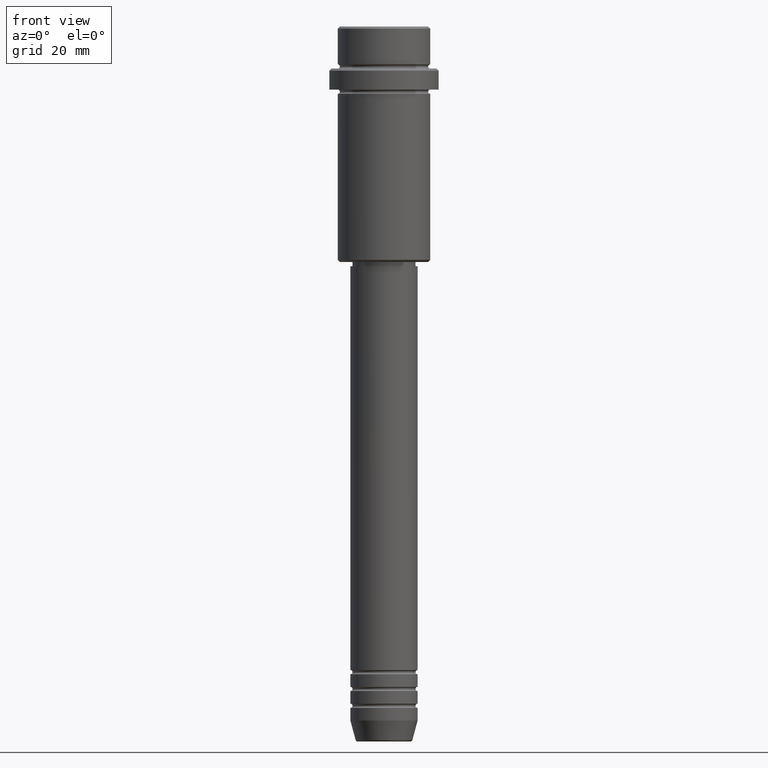
[diagram: clean part render]
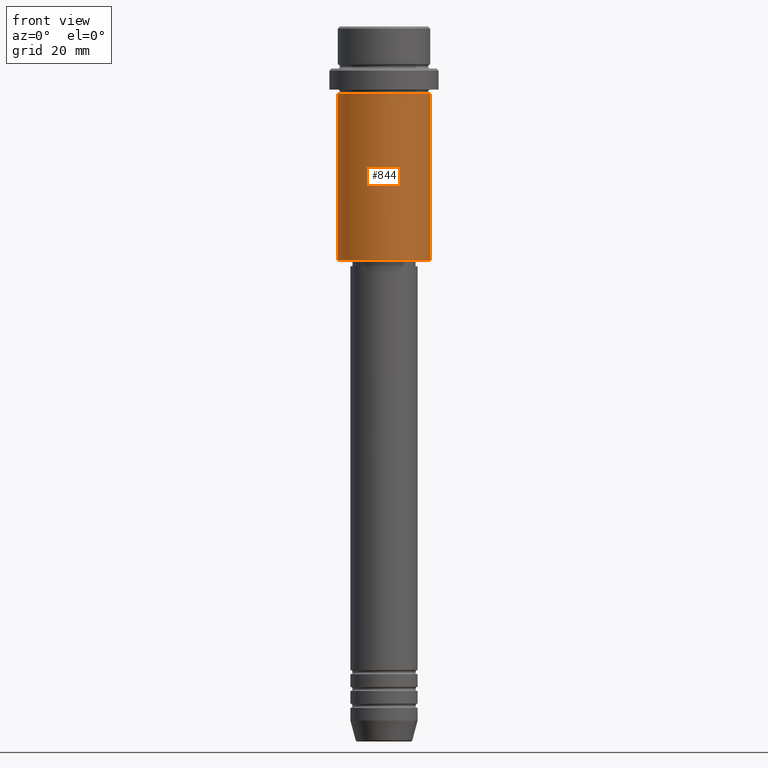
[diagram: same view with one face highlighted and labeled with its STEP entity id]
A machine part, front view. The second image highlights one B-rep face of the part: STEP entity #844.
In plain terms, the highlighted cylindrical surface (partial cylindrical patch) has radius 11 mm, axis along (-0, -0, 1).
Its self-contained STEP definition (entity closure, byte-faithful):
#96 = CARTESIAN_POINT ( 'NONE',  ( 0.000000000000000000, 0.000000000000000000, -55.50000000000002132 ) ) ;
#102 = DIRECTION ( 'NONE',  ( -1.000000000000000000, 0.000000000000000000, 0.000000000000000000 ) ) ;
#198 = ORIENTED_EDGE ( 'NONE', *, *, #553, .T. ) ;
#273 = DIRECTION ( 'NONE',  ( 1.000000000000000000, 0.000000000000000000, 0.000000000000000000 ) ) ;
#276 = CIRCLE ( 'NONE', #1317, 10.99999999999998757 ) ;
#298 = VECTOR ( 'NONE', #1236, 1000.000000000000000 ) ;
#326 = DIRECTION ( 'NONE',  ( 1.000000000000000000, 0.000000000000000000, 0.000000000000000000 ) ) ;
#356 = CIRCLE ( 'NONE', #901, 10.99999999999997158 ) ;
#365 = CARTESIAN_POINT ( 'NONE',  ( 10.99999999999998757, 0.000000000000000000, 0.000000000000000000 ) ) ;
#416 = CARTESIAN_POINT ( 'NONE',  ( -10.99999999999998757, 1.347111479062086827E-15, 0.000000000000000000 ) ) ;
#445 = VECTOR ( 'NONE', #1411, 1000.000000000000000 ) ;
#456 = VERTEX_POINT ( 'NONE', #668 ) ;
#503 = CYLINDRICAL_SURFACE ( 'NONE', #742, 10.99999999999998757 ) ;
#521 = CARTESIAN_POINT ( 'NONE',  ( 0.000000000000000000, 0.000000000000000000, 0.000000000000000000 ) ) ;
#553 = EDGE_CURVE ( 'NONE', #456, #719, #803, .T. ) ;
#623 = CARTESIAN_POINT ( 'NONE',  ( -10.99999999999998757, 1.347111479062086827E-15, -55.50000000000002132 ) ) ;
#645 = ORIENTED_EDGE ( 'NONE', *, *, #1405, .T. ) ;
#668 = CARTESIAN_POINT ( 'NONE',  ( 10.99999999999998757, 0.000000000000000000, -55.50000000000002132 ) ) ;
#719 = VERTEX_POINT ( 'NONE', #1403 ) ;
#734 = FACE_OUTER_BOUND ( 'NONE', #783, .T. ) ;
#742 = AXIS2_PLACEMENT_3D ( 'NONE', #521, #1399, #273 ) ;
#745 = EDGE_CURVE ( 'NONE', #1241, #719, #356, .T. ) ;
#746 = DIRECTION ( 'NONE',  ( -0.000000000000000000, -0.000000000000000000, 1.000000000000000000 ) ) ;
#753 = DIRECTION ( 'NONE',  ( -0.000000000000000000, -0.000000000000000000, 1.000000000000000000 ) ) ;
#775 = ORIENTED_EDGE ( 'NONE', *, *, #1364, .F. ) ;
#783 = EDGE_LOOP ( 'NONE', ( #775, #645, #198, #1056 ) ) ;
#803 = LINE ( 'NONE', #365, #298 ) ;
#804 = CARTESIAN_POINT ( 'NONE',  ( -10.99999999999997158, 1.347111479062085841E-15, -16.00000000000000355 ) ) ;
#844 = ADVANCED_FACE ( 'NONE', ( #734 ), #503, .T. ) ;
#861 = LINE ( 'NONE', #416, #445 ) ;
#901 = AXIS2_PLACEMENT_3D ( 'NONE', #1072, #753, #326 ) ;
#1056 = ORIENTED_EDGE ( 'NONE', *, *, #745, .F. ) ;
#1072 = CARTESIAN_POINT ( 'NONE',  ( 0.000000000000000000, 0.000000000000000000, -16.00000000000000355 ) ) ;
#1236 = DIRECTION ( 'NONE',  ( -0.000000000000000000, -0.000000000000000000, 1.000000000000000000 ) ) ;
#1241 = VERTEX_POINT ( 'NONE', #804 ) ;
#1275 = VERTEX_POINT ( 'NONE', #623 ) ;
#1317 = AXIS2_PLACEMENT_3D ( 'NONE', #96, #746, #102 ) ;
#1364 = EDGE_CURVE ( 'NONE', #1275, #1241, #861, .T. ) ;
#1399 = DIRECTION ( 'NONE',  ( -0.000000000000000000, -0.000000000000000000, 1.000000000000000000 ) ) ;
#1403 = CARTESIAN_POINT ( 'NONE',  ( 10.99999999999997158, 0.000000000000000000, -16.00000000000000355 ) ) ;
#1405 = EDGE_CURVE ( 'NONE', #1275, #456, #276, .T. ) ;
#1411 = DIRECTION ( 'NONE',  ( -0.000000000000000000, -0.000000000000000000, 1.000000000000000000 ) ) ;